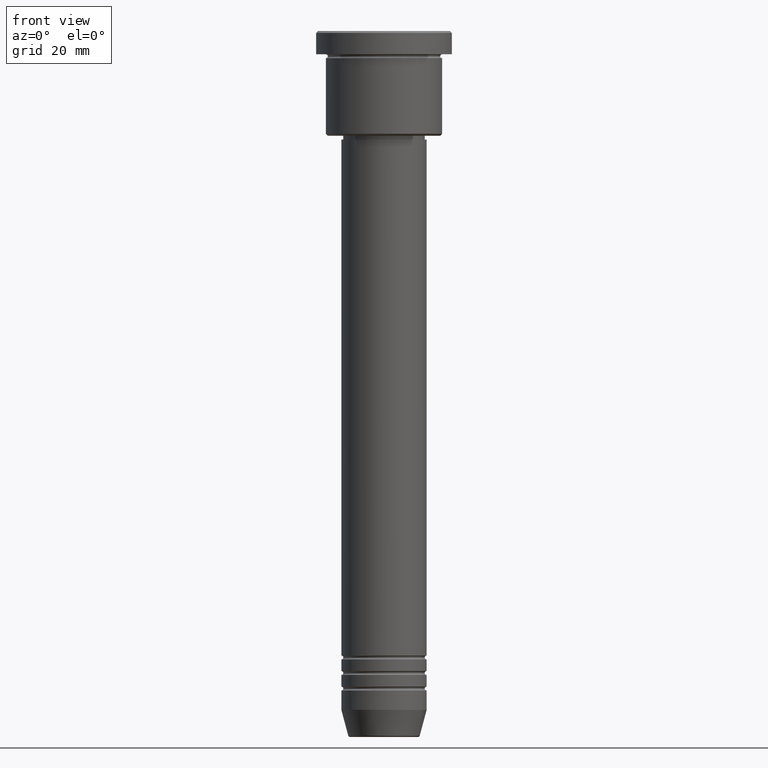
[diagram: clean part render]
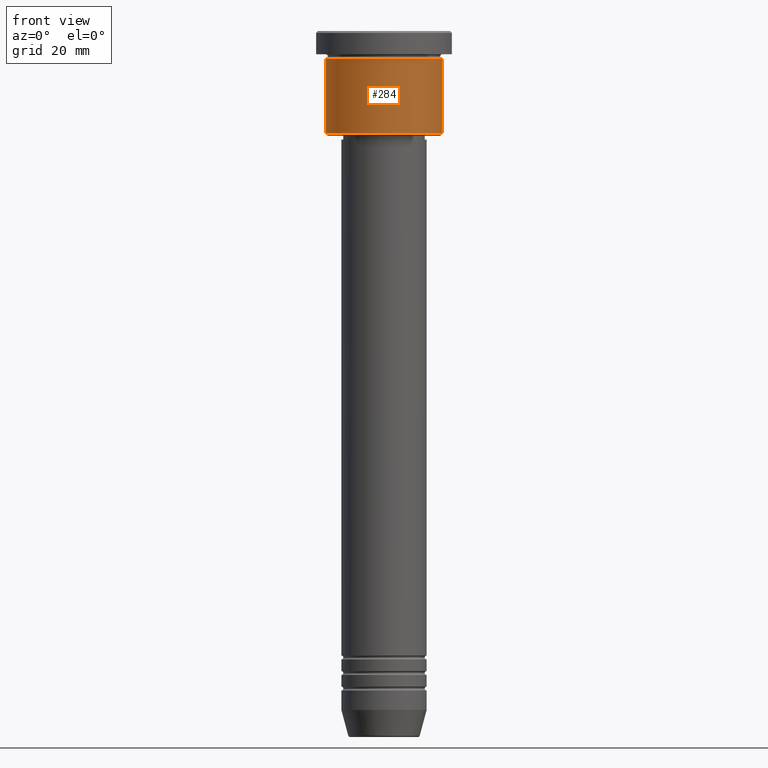
[diagram: same view with one face highlighted and labeled with its STEP entity id]
A machine part, front view. The second image highlights one B-rep face of the part: STEP entity #284.
In plain terms, the highlighted cylindrical surface (partial cylindrical patch) has radius 15 mm, axis along (-0, -0, 1).
Its self-contained STEP definition (entity closure, byte-faithful):
#48 = AXIS2_PLACEMENT_3D ( 'NONE', #802, #435, #1154 ) ;
#62 = DIRECTION ( 'NONE',  ( -0.000000000000000000, -0.000000000000000000, 1.000000000000000000 ) ) ;
#68 = VECTOR ( 'NONE', #1161, 1000.000000000000000 ) ;
#78 = ORIENTED_EDGE ( 'NONE', *, *, #641, .F. ) ;
#110 = EDGE_CURVE ( 'NONE', #399, #494, #317, .T. ) ;
#152 = CARTESIAN_POINT ( 'NONE',  ( 0.000000000000000000, 0.000000000000000000, -6.999999999999995559 ) ) ;
#207 = CARTESIAN_POINT ( 'NONE',  ( -15.00000000000000000, 1.836970198721029589E-15, -26.50000000000000711 ) ) ;
#208 = EDGE_LOOP ( 'NONE', ( #1014, #449, #407, #78 ) ) ;
#269 = EDGE_CURVE ( 'NONE', #838, #387, #1156, .T. ) ;
#284 = ADVANCED_FACE ( 'NONE', ( #754 ), #750, .T. ) ;
#317 = LINE ( 'NONE', #909, #359 ) ;
#359 = VECTOR ( 'NONE', #544, 1000.000000000000000 ) ;
#370 = CARTESIAN_POINT ( 'NONE',  ( 15.00000000000000000, 0.000000000000000000, -26.50000000000000711 ) ) ;
#387 = VERTEX_POINT ( 'NONE', #389 ) ;
#389 = CARTESIAN_POINT ( 'NONE',  ( -15.00000000000000000, 1.836970198721029589E-15, -6.999999999999995559 ) ) ;
#399 = VERTEX_POINT ( 'NONE', #370 ) ;
#407 = ORIENTED_EDGE ( 'NONE', *, *, #110, .T. ) ;
#435 = DIRECTION ( 'NONE',  ( -0.000000000000000000, -0.000000000000000000, 1.000000000000000000 ) ) ;
#438 = AXIS2_PLACEMENT_3D ( 'NONE', #1006, #1020, #847 ) ;
#445 = CARTESIAN_POINT ( 'NONE',  ( -15.00000000000000000, 1.836970198721029589E-15, 0.000000000000000000 ) ) ;
#449 = ORIENTED_EDGE ( 'NONE', *, *, #599, .T. ) ;
#494 = VERTEX_POINT ( 'NONE', #957 ) ;
#544 = DIRECTION ( 'NONE',  ( -0.000000000000000000, -0.000000000000000000, 1.000000000000000000 ) ) ;
#599 = EDGE_CURVE ( 'NONE', #838, #399, #839, .T. ) ;
#639 = AXIS2_PLACEMENT_3D ( 'NONE', #152, #62, #796 ) ;
#641 = EDGE_CURVE ( 'NONE', #387, #494, #760, .T. ) ;
#750 = CYLINDRICAL_SURFACE ( 'NONE', #438, 15.00000000000000000 ) ;
#754 = FACE_OUTER_BOUND ( 'NONE', #208, .T. ) ;
#760 = CIRCLE ( 'NONE', #639, 15.00000000000000000 ) ;
#796 = DIRECTION ( 'NONE',  ( 1.000000000000000000, 0.000000000000000000, 0.000000000000000000 ) ) ;
#802 = CARTESIAN_POINT ( 'NONE',  ( 0.000000000000000000, 0.000000000000000000, -26.50000000000000711 ) ) ;
#838 = VERTEX_POINT ( 'NONE', #207 ) ;
#839 = CIRCLE ( 'NONE', #48, 15.00000000000000000 ) ;
#847 = DIRECTION ( 'NONE',  ( 1.000000000000000000, 0.000000000000000000, 0.000000000000000000 ) ) ;
#909 = CARTESIAN_POINT ( 'NONE',  ( 15.00000000000000000, 0.000000000000000000, 0.000000000000000000 ) ) ;
#957 = CARTESIAN_POINT ( 'NONE',  ( 15.00000000000000000, 0.000000000000000000, -6.999999999999995559 ) ) ;
#1006 = CARTESIAN_POINT ( 'NONE',  ( 0.000000000000000000, 0.000000000000000000, 0.000000000000000000 ) ) ;
#1014 = ORIENTED_EDGE ( 'NONE', *, *, #269, .F. ) ;
#1020 = DIRECTION ( 'NONE',  ( -0.000000000000000000, -0.000000000000000000, 1.000000000000000000 ) ) ;
#1154 = DIRECTION ( 'NONE',  ( -1.000000000000000000, 0.000000000000000000, 0.000000000000000000 ) ) ;
#1156 = LINE ( 'NONE', #445, #68 ) ;
#1161 = DIRECTION ( 'NONE',  ( -0.000000000000000000, -0.000000000000000000, 1.000000000000000000 ) ) ;